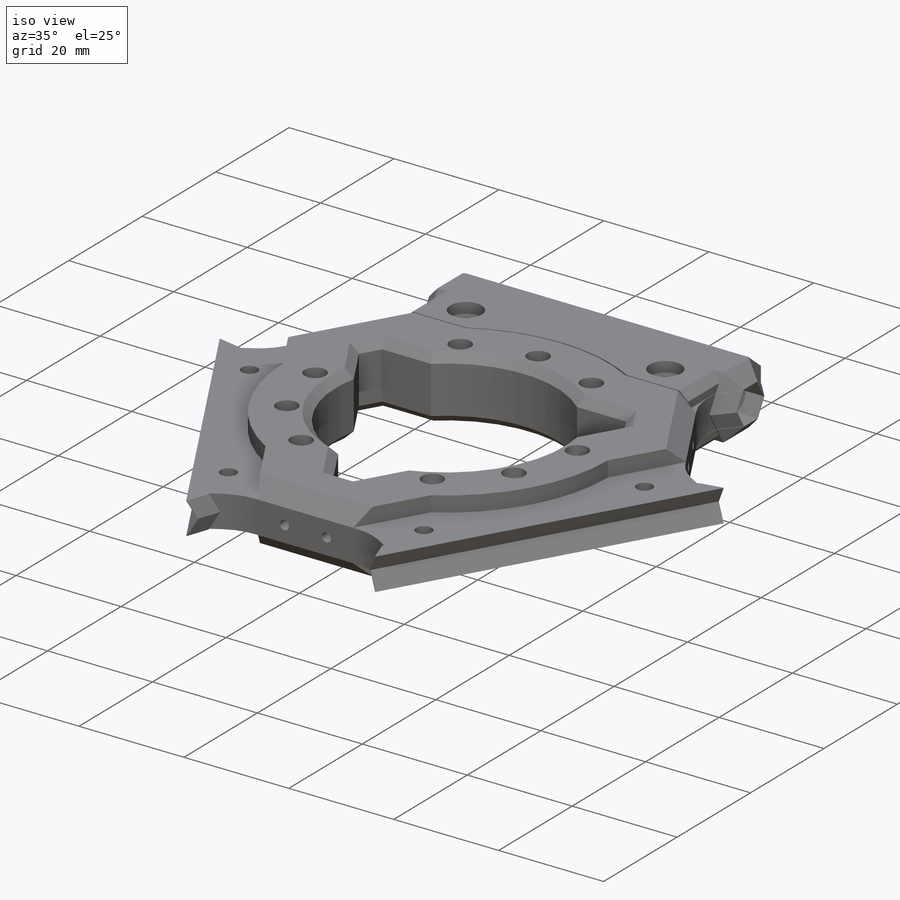
[diagram: iso view]
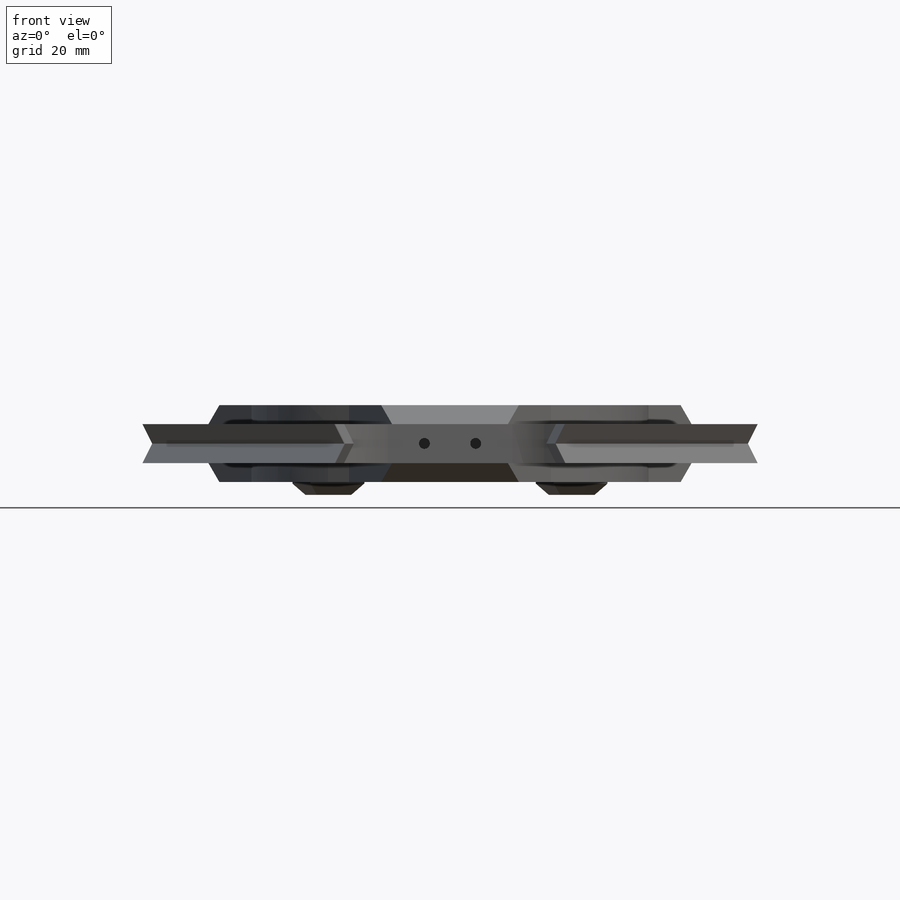
[diagram: front view]
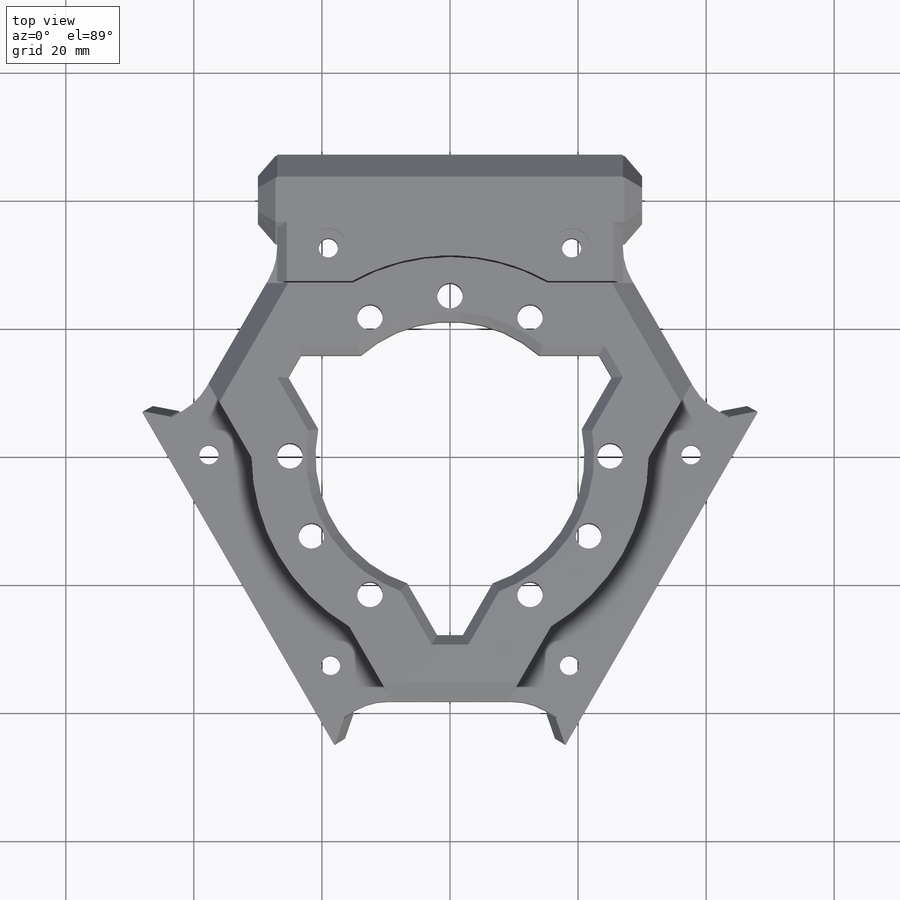
[diagram: top view]
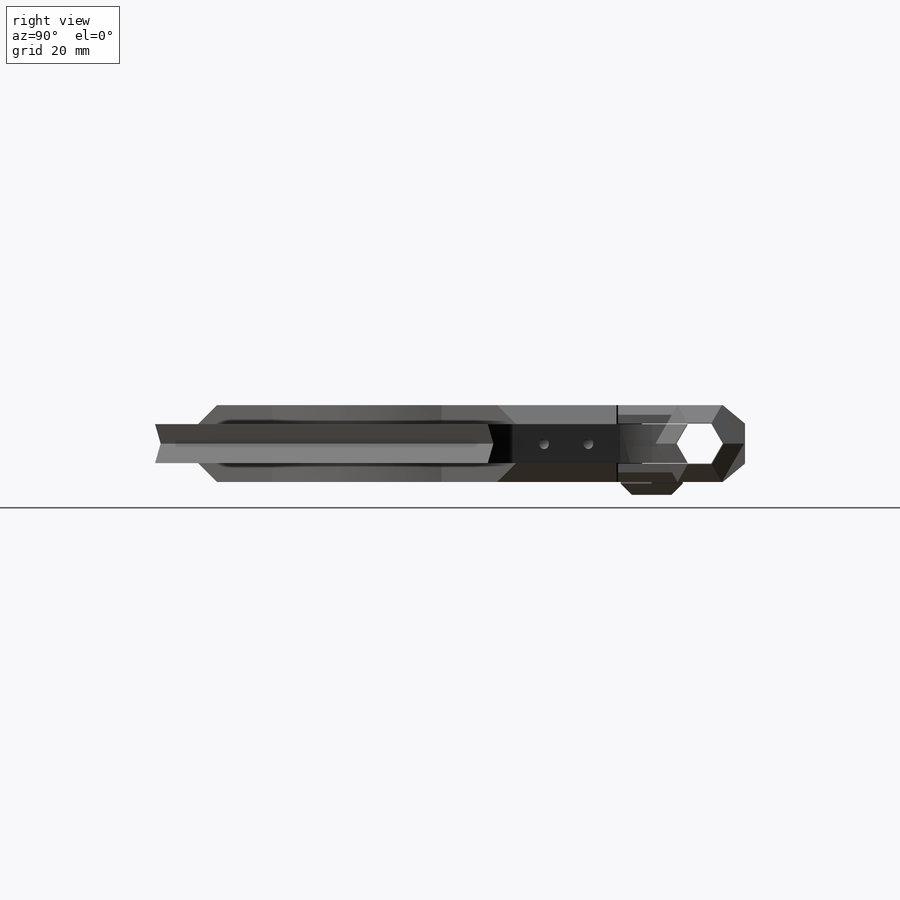
[diagram: right view]
SOLIDWORKS PART (.sldprt)
format: sldprt  version: not decoded by parser v0  size: 2,468,864 bytes
history: native  units: mm
features: sketch x18, extrude x9, cut_extrude x9, chamfer x8, mirror x4, boolean_combine x2, material x1, fillet x1 (+12 scaffold rows collapsed)
feature tree (64):
  scaffold x12  (default folders/planes/origin — collapsed)
  material  "Material <not specified>"
  sketch  "Sketch1"  dims[c1.D1=50.0mm c1.D2=4.0mm c1.D3=42.0mm c1.D4=25.0mm c2.D4=30.0deg c2.D5=25.0mm c3.D5=30.0deg c3.D6=14.0mm c3.D7=27.0mm c3.D8=10.0mm c3.D9=40.0mm]
  extrude  "Boss-Extrude1"  Depth=12mm
  sketch  "Sketch2"  dims[D1=6.25mm D2=0.15mm D3=0.15mm D4=13.0mm]
  cut_extrude  "Cut-Extrude1"  [1 undecoded]
  sketch  "Sketch3"  dims[D1=6.25mm D2=0.25mm D3=3.0mm]
  extrude  "Boss-Extrude2"  [1 undecoded]
  sketch  "Sketch16"  dims[D1=0.25mm]
  cut_extrude  "Cut-Extrude8"  [1 undecoded]
  sketch  "Sketch4"  dims[D1=3.0mm D2=5.5mm D3=19.0mm]
  cut_extrude  "Cut-Extrude2"  [1 undecoded]
  sketch  "Sketch5"  dims[D1=6.0mm]
  cut_extrude  "Cut-Extrude3"  Depth=2mm
  sketch  "Sketch6"  dims[c1.D1=5.7mm c1.D2=~8.534302mm c1.D3=~5.714647mm c2.D2=2.0mm c2.D3=2.0mm]
  extrude  "Boss-Extrude3"  Depth=2mm
  sketch  "Sketch7"  dims[D1=0.0mm D2=0.0mm]
  cut_extrude  "Cut-Extrude4"  Depth=1mm
  sketch  "Sketch8"
  extrude  "Boss-Extrude4"  Depth=3mm
  chamfer  "Chamfer1"  Distance=2.75mm Angle=45deg
  sketch  "Sketch9"
  extrude  "Boss-Extrude5"  Depth=3mm
  chamfer  "Chamfer2"  Distance=2.75mm Angle=45deg
  sketch  "Sketch10"  dims[c1.D1=1.0mm c1.D2=~8.874274mm c2.D2=60.0deg c2.D3=2.0mm]
  cut_extrude  "Cut-Extrude5"  [1 undecoded]
  sketch  "Sketch11"  dims[D1=11.0mm]
  extrude  "Boss-Extrude6"  [1 undecoded]
  chamfer  "Chamfer3"  Distance=1.75mm Angle=45deg
  chamfer  "Chamfer4"  Distance=1.5mm Angle=45deg
  chamfer  "Chamfer5"  Distance=1.5mm Angle=45deg
  sketch  "Sketch12"  dims[D1=0.25mm D2=0.25mm]
  extrude  "Boss-Extrude7"  Depth=0.5mm
  chamfer  "Chamfer6"  Distance=0.25mm Angle=45deg
  chamfer  "Chamfer7"  Distance=0.125mm Angle=45deg
  chamfer  "Chamfer8"  Distance=1.5mm Angle=45deg
  sketch  "Sketch13"  dims[D1=1.7mm D2=4.0mm]
  cut_extrude  "Cut-Extrude6"  Depth=6mm
  sketch  "Sketch18"  dims[D1=14.0mm]
  extrude  "Boss-Extrude9"  Depth=2mm
  sketch  "Sketch19"
  extrude  "Boss-Extrude10"  [1 undecoded]
  sketch  "Sketch20"
  cut_extrude  "Cut-Extrude9"  [1 undecoded]
  fillet  "Fillet1"  Radius=10mm
  mirror  "Mirror1"
  mirror  "Mirror2"
  mirror  "Mirror3"
  mirror  "Mirror4"
  boolean_combine  "Combine1"
  boolean_combine  "Combine2"
  sketch  "Sketch14"  dims[D1=1.7mm]
  cut_extrude  "Cut-Extrude7"  Depth=8mm
decode coverage: 33 of 51 modeling features carry decoded parameters
note: ~ marks probable driven/reference dimensions
note: 8 parameter values undecoded
summary: no parameter record found for 8 features
note: suppression state not decoded; provenance and decode notes live in map.json
